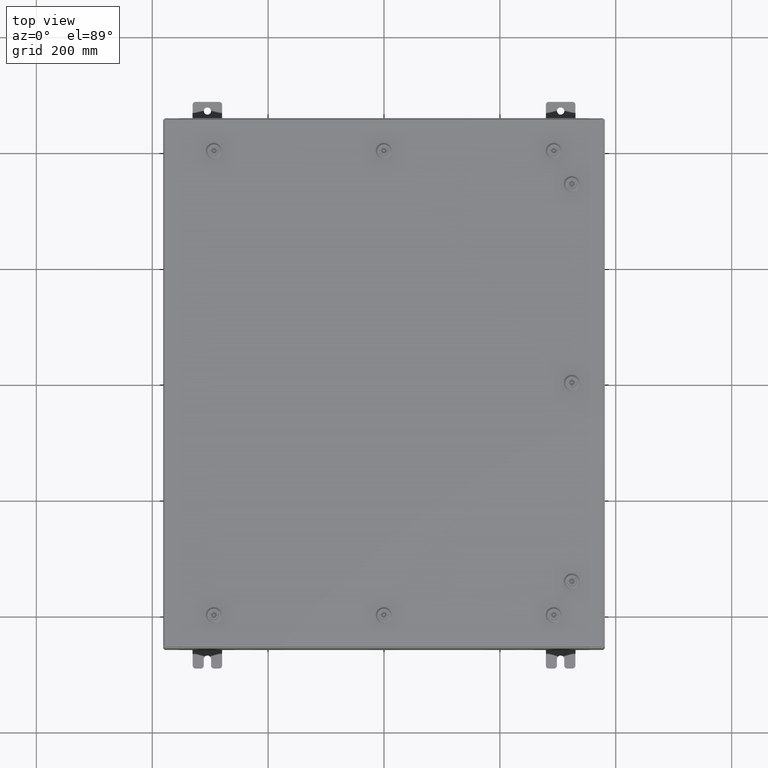
[diagram: clean part render]
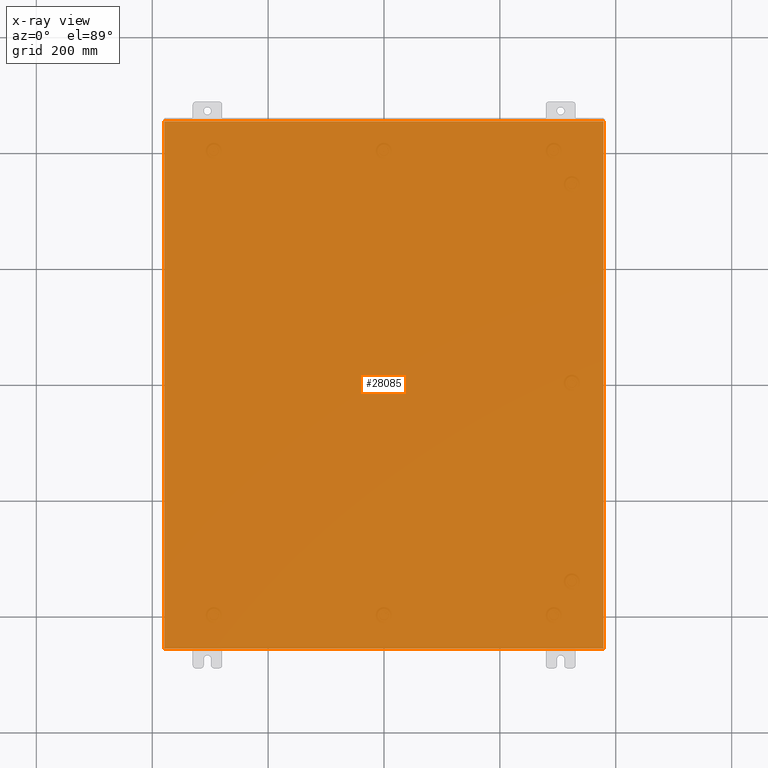
[diagram: x-ray — body ghosted, one internal face saturated and labeled with its STEP entity id]
A machine part, top view, then the same camera in x-ray: the body is ghosted and one INTERNAL B-rep face — a face not visible from any outside direction — is saturated and labeled: STEP entity #28085.
In plain terms, the highlighted planar face has unit normal (0, 0, -1).
Its self-contained STEP definition (entity closure, byte-faithful):
#877 = LINE ( 'NONE', #18347, #50213 ) ;
#4787 = ORIENTED_EDGE ( 'NONE', *, *, #20944, .F. ) ;
#7063 = LINE ( 'NONE', #47991, #19058 ) ;
#9125 = ORIENTED_EDGE ( 'NONE', *, *, #33145, .T. ) ;
#9310 = ORIENTED_EDGE ( 'NONE', *, *, #60556, .F. ) ;
#10136 = FACE_OUTER_BOUND ( 'NONE', #46012, .T. ) ;
#12940 = VECTOR ( 'NONE', #29512, 39.37007874015748100 ) ;
#17533 = DIRECTION ( 'NONE',  ( 1.000000000000000000, 0.0000000000000000000, 0.0000000000000000000 ) ) ;
#18347 = CARTESIAN_POINT ( 'NONE',  ( 14.91229999999999800, 17.92530000000000000, -2.518422369159242700E-015 ) ) ;
#19058 = VECTOR ( 'NONE', #17533, 39.37007874015748100 ) ;
#19251 = CARTESIAN_POINT ( 'NONE',  ( 0.0000000000000000000, 0.0000000000000000000, 0.0000000000000000000 ) ) ;
#20944 = EDGE_CURVE ( 'NONE', #29083, #49884, #877, .T. ) ;
#23442 = DIRECTION ( 'NONE',  ( -0.0000000000000000000, -1.000000000000000000, 8.208677865577646300E-017 ) ) ;
#23554 = ORIENTED_EDGE ( 'NONE', *, *, #36425, .T. ) ;
#28085 = ADVANCED_FACE ( 'NONE', ( #10136 ), #39214, .F. ) ;
#29083 = VERTEX_POINT ( 'NONE', #31124 ) ;
#29512 = DIRECTION ( 'NONE',  ( -0.0000000000000000000, 1.000000000000000000, -0.0000000000000000000 ) ) ;
#30346 = DIRECTION ( 'NONE',  ( -1.000000000000000000, -0.0000000000000000000, -0.0000000000000000000 ) ) ;
#31124 = CARTESIAN_POINT ( 'NONE',  ( 14.91229999999999800, 17.92530000000000000, -2.518422369159242700E-015 ) ) ;
#33092 = VECTOR ( 'NONE', #30346, 39.37007874015748100 ) ;
#33145 = EDGE_CURVE ( 'NONE', #55478, #49884, #7063, .T. ) ;
#33346 = CARTESIAN_POINT ( 'NONE',  ( -14.91230000000000200, -17.92530000000000000, 4.481938114605432000E-017 ) ) ;
#34541 = DIRECTION ( 'NONE',  ( -1.000000000000000000, 0.0000000000000000000, -0.0000000000000000000 ) ) ;
#34605 = CARTESIAN_POINT ( 'NONE',  ( -14.91230000000000200, -17.92530000000000000, 4.481938114605432000E-017 ) ) ;
#34713 = LINE ( 'NONE', #65998, #33092 ) ;
#36127 = CARTESIAN_POINT ( 'NONE',  ( -14.91230000000000200, 17.92530000000000000, 4.481938114605432000E-017 ) ) ;
#36425 = EDGE_CURVE ( 'NONE', #29083, #49530, #34713, .T. ) ;
#38389 = LINE ( 'NONE', #34605, #12940 ) ;
#39214 = PLANE ( 'NONE',  #60713 ) ;
#46012 = EDGE_LOOP ( 'NONE', ( #9310, #9125, #4787, #23554 ) ) ;
#47991 = CARTESIAN_POINT ( 'NONE',  ( -15.00000000000000400, -17.92530000000000000, 0.0000000000000000000 ) ) ;
#49530 = VERTEX_POINT ( 'NONE', #36127 ) ;
#49884 = VERTEX_POINT ( 'NONE', #58762 ) ;
#50213 = VECTOR ( 'NONE', #23442, 39.37007874015748100 ) ;
#55478 = VERTEX_POINT ( 'NONE', #33346 ) ;
#58762 = CARTESIAN_POINT ( 'NONE',  ( 14.91229999999999800, -17.92530000000000000, 4.247169927649909300E-016 ) ) ;
#60556 = EDGE_CURVE ( 'NONE', #55478, #49530, #38389, .T. ) ;
#60713 = AXIS2_PLACEMENT_3D ( 'NONE', #19251, #65075, #34541 ) ;
#65075 = DIRECTION ( 'NONE',  ( 0.0000000000000000000, 0.0000000000000000000, -1.000000000000000000 ) ) ;
#65998 = CARTESIAN_POINT ( 'NONE',  ( -15.00000000000000400, 17.92530000000000000, 0.0000000000000000000 ) ) ;